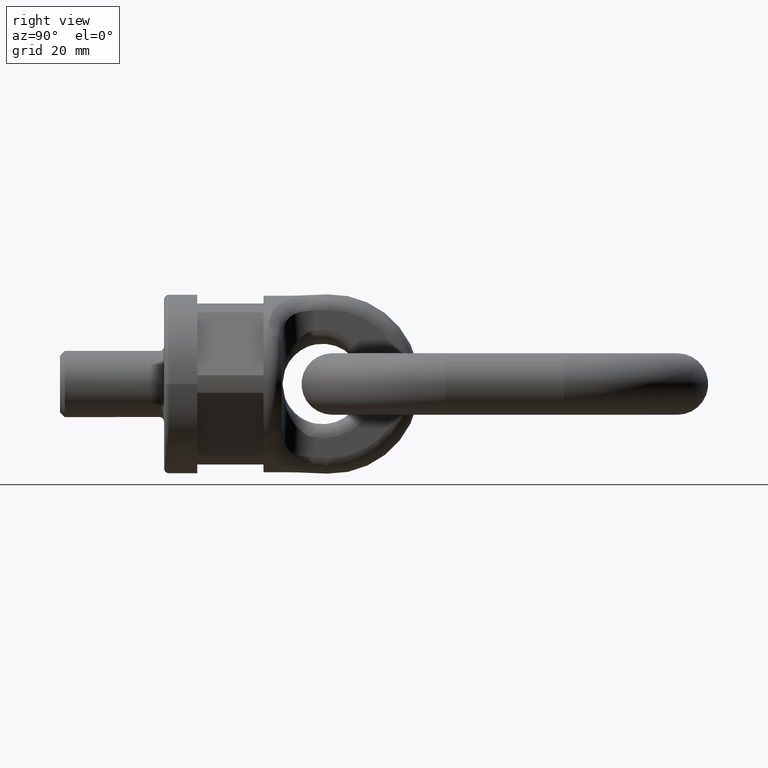
[diagram: clean part render]
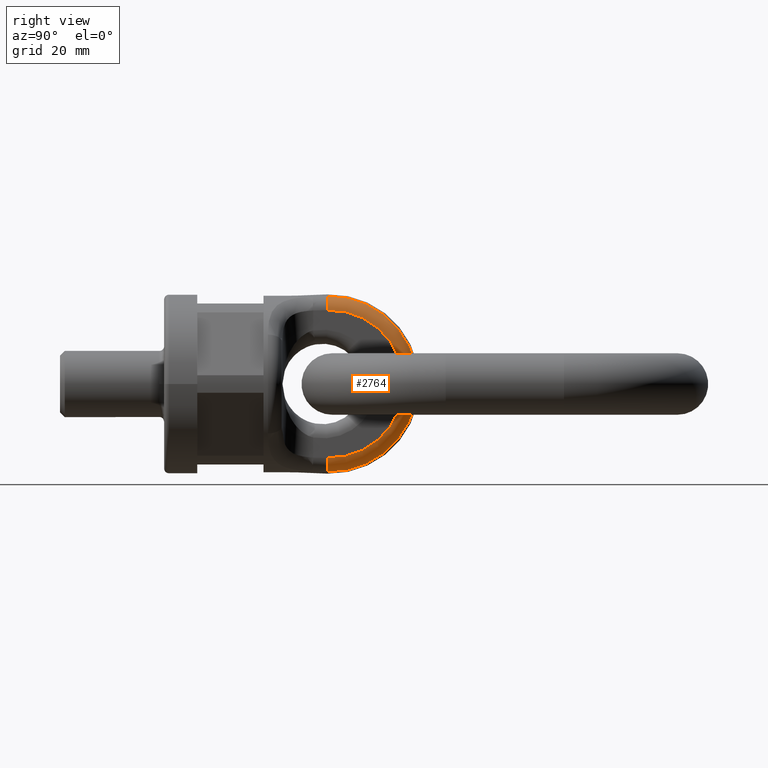
[diagram: same view with one face highlighted and labeled with its STEP entity id]
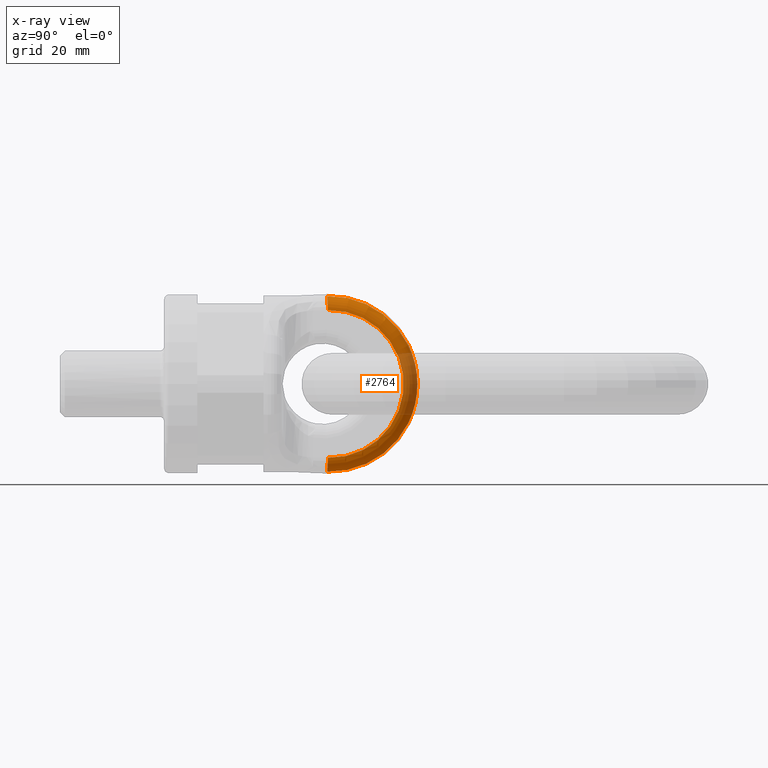
[diagram: x-ray of the same camera — body ghosted, the highlighted face saturated]
A machine part, right view. The second image highlights one B-rep face of the part: STEP entity #2764.
The next image is the same camera in x-ray: the body ghosted, the highlighted face saturated — about 25% of this face is hidden behind the body in this view.
In plain terms, the highlighted toroidal blend (fillet) surface has major radius 15.6125 mm and minor (blend) radius 3 mm.
Its self-contained STEP definition (entity closure, byte-faithful):
#1791=TOROIDAL_SURFACE('',#5717,15.612494995996,3.);
#1908=FACE_OUTER_BOUND('',#3208,.T.);
#2764=ADVANCED_FACE('',(#1908),#1791,.T.);
#3208=EDGE_LOOP('',(#3972,#3973,#3974,#3975));
#3972=ORIENTED_EDGE('',*,*,#5256,.T.);
#3973=ORIENTED_EDGE('',*,*,#5072,.F.);
#3974=ORIENTED_EDGE('',*,*,#5258,.F.);
#3975=ORIENTED_EDGE('',*,*,#5004,.F.);
#4594=VERTEX_POINT('',#6791);
#4595=VERTEX_POINT('',#6793);
#4648=VERTEX_POINT('',#7021);
#4653=VERTEX_POINT('',#7055);
#5004=EDGE_CURVE('',#4594,#4595,#5552,.T.);
#5072=EDGE_CURVE('',#4653,#4648,#5559,.T.);
#5256=EDGE_CURVE('',#4594,#4648,#5569,.T.);
#5258=EDGE_CURVE('',#4595,#4653,#5571,.T.);
#5552=CIRCLE('',#5640,15.612494995996);
#5559=CIRCLE('',#5651,18.5398378077452);
#5569=CIRCLE('',#5714,3.);
#5571=CIRCLE('',#5716,3.);
#5640=AXIS2_PLACEMENT_3D('',#6792,#5923,#5924);
#5651=AXIS2_PLACEMENT_3D('',#7088,#5973,#5974);
#5714=AXIS2_PLACEMENT_3D('',#8138,#6225,#6226);
#5716=AXIS2_PLACEMENT_3D('',#8182,#6229,#6230);
#5717=AXIS2_PLACEMENT_3D('',#8183,#6231,#6232);
#5923=DIRECTION('',(1.,-3.58908305374512E-16,0.));
#5924=DIRECTION('',(3.33333681084611E-16,1.,0.));
#5973=DIRECTION('',(-1.,3.58908305374512E-16,0.));
#5974=DIRECTION('',(-3.74269396305529E-16,-1.,0.));
#6225=DIRECTION('',(0.,0.999657187497484,-0.0261821978569384));
#6226=DIRECTION('',(0.,0.0261821978569388,0.999657187497484));
#6229=DIRECTION('',(0.,-0.999657187497484,-0.0261821978569384));
#6230=DIRECTION('',(0.,0.0261821978569388,-0.999657187497484));
#6231=DIRECTION('',(1.,-3.58908305374512E-16,0.));
#6232=DIRECTION('',(3.49507846009493E-16,1.,0.));
#6791=CARTESIAN_POINT('',(6.5,34.5912305669744,-15.6071428375159));
#6792=CARTESIAN_POINT('',(6.5,35.,0.));
#6793=CARTESIAN_POINT('',(6.5,34.5912305669744,15.6071428375159));
#7021=CARTESIAN_POINT('',(4.15625,34.514586298282,-18.5334821195501));
#7055=CARTESIAN_POINT('',(4.15625,34.514586298282,18.5334821195501));
#7088=CARTESIAN_POINT('',(4.15625,35.,0.));
#8138=CARTESIAN_POINT('',(3.5,34.5912305669744,-15.6071428375159));
#8182=CARTESIAN_POINT('',(3.5,34.5912305669744,15.6071428375159));
#8183=CARTESIAN_POINT('',(3.5,35.,0.));